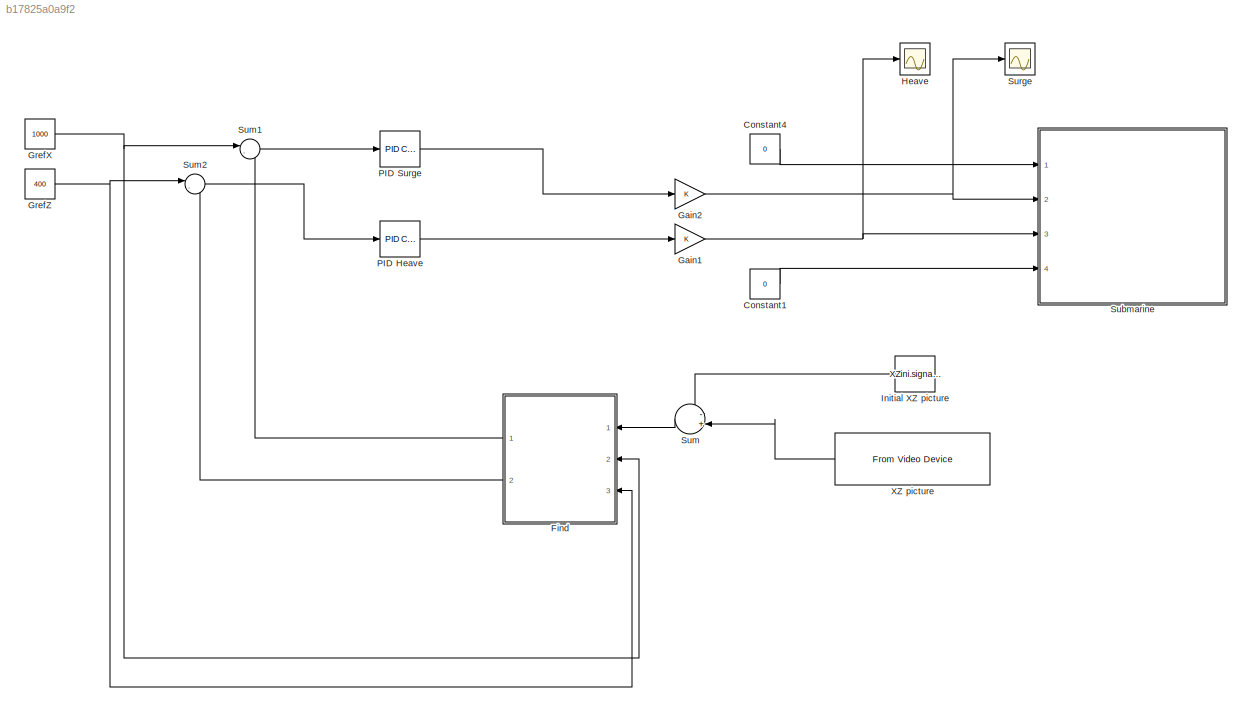
MODEL slx_b17825a0a9f2
KIND model
CONFIG AbsTol = auto
CONFIG EnableMultiTasking = off
CONFIG FixedStep = 0.01
CONFIG MaxStep = auto
CONFIG MinStep = auto
CONFIG RelTol = 1e-3
CONFIG SampleTimeConstraint = Unconstrained
CONFIG Solver = FixedStepAuto
CONFIG SolverName = FixedStepAuto
CONFIG StartTime = 0.0
CONFIG StopTime = Inf
BLOCK [Constant] Constant1
  Value = 0
BLOCK [Constant] Constant4
  Value = 0
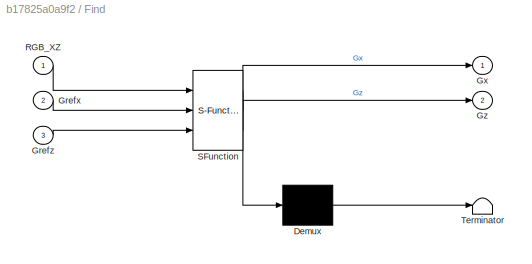
BLOCK [SubSystem] Find
  ErrorFcn = Stateflow.Translate.translate
  PermitHierarchicalResolution = ExplicitOnly
  Ports = [3, 2]
  RequestExecContextInheritance = off
  SFBlockType = MATLAB Function
  TreatAsAtomicUnit = on
BLOCK [Demux] Find/ Demux 
  Outputs = 1
  Ports = [1, 1]
BLOCK [S-Function] Find/ SFunction 
  EnableBusSupport = on
  FunctionName = sf_sfun
  PortCounts = [3 3]
  Ports = [3, 3]
  SFcnIsStateOwnerBlock = off
  SFunctionDeploymentMode = off
  Tag = Stateflow S-Function FullModel_v3_noYaw 2
BLOCK [Terminator] Find/ Terminator 
BLOCK [Inport] Find/Grefx
  IconDisplay = Port number
  Port = 2
BLOCK [Inport] Find/Grefz
  IconDisplay = Port number
  Port = 3
BLOCK [Outport] Find/Gx
  IconDisplay = Port number
BLOCK [Outport] Find/Gz
  IconDisplay = Port number
  Port = 2
BLOCK [Inport] Find/RGB_XZ
  IconDisplay = Port number
BLOCK [Gain] Gain1
  OutDataTypeStr = Inherit: Inherit via internal rule
  ParamDataTypeStr = Inherit: Inherit via internal rule
  SaturateOnIntegerOverflow = off
BLOCK [Gain] Gain2
  OutDataTypeStr = Inherit: Inherit via internal rule
  ParamDataTypeStr = Inherit: Inherit via internal rule
  SaturateOnIntegerOverflow = off
BLOCK [Constant] GrefX
  Value = 1000
BLOCK [Constant] GrefZ 
  Value = 400
BLOCK [Scope] Heave
  Floating = off
  NumInputPorts = 1
  Ports = [1]
  ScopeSpecificationString = Simulink.scopes.TimeScopeBlockCfg('CurrentConfiguration', extmgr.ConfigurationSet(extmgr.Configuration('Core','General UI',true),extmgr.Configuration('Core','Source UI',true),extmgr.Configuration('Sources','WiredSimulink',true),extmgr.Configuration('Visuals','Time Domain',true,'SerializedDisplays',{struct('MinYLimReal','-1250.00000','MaxYLimReal','1250.00000','YLabelReal','','MinYLimMag','  0.0000...<+1376ch>
BLOCK [Constant] Initial XZ picture
  Value = XZini.signals.values
BLOCK [Reference] PID Heave  REF=simulink/Continuous/PID Controller
  Ports = [1, 1]
  SourceBlock = simulink/Continuous/PID Controller
  SourceProductBaseCode = SL
  SourceProductName = Simulink
  SourceType = PID 1dof
BLOCK [Reference] PID Surge  REF=simulink/Continuous/PID Controller
  Ports = [1, 1]
  SourceBlock = simulink/Continuous/PID Controller
  SourceProductBaseCode = SL
  SourceProductName = Simulink
  SourceType = PID 1dof
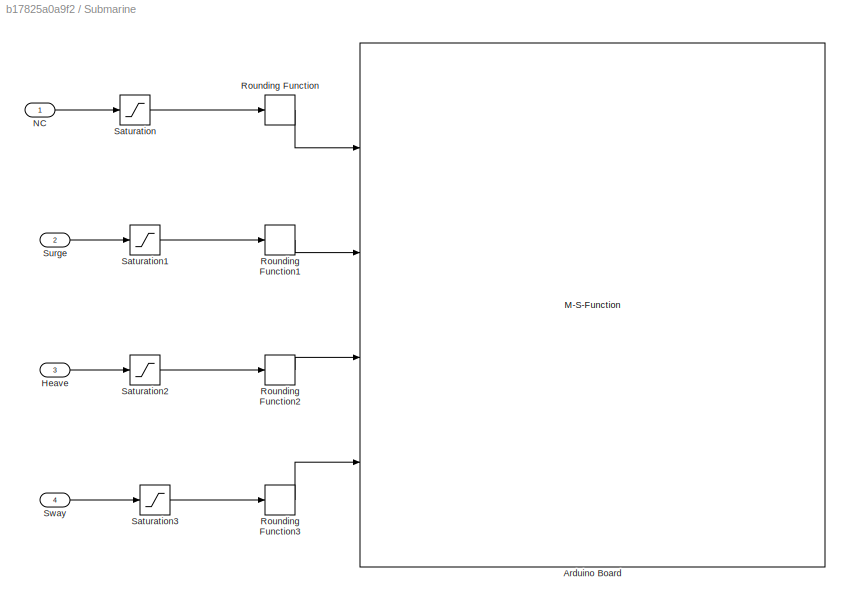
BLOCK [SubSystem] Submarine
  Ports = [4]
  RequestExecContextInheritance = off
BLOCK [M-S-Function] Submarine/Arduino Board
  FunctionName = Arduino_Board_Serial_Calibration
  Ports = [4]
BLOCK [Inport] Submarine/Heave
  IconDisplay = Port number
  Port = 3
BLOCK [Inport] Submarine/NC
  IconDisplay = Port number
BLOCK [Rounding] Submarine/Rounding Function
  Operator = round
BLOCK [Rounding] Submarine/Rounding Function1
  Operator = round
BLOCK [Rounding] Submarine/Rounding Function2
  Operator = round
BLOCK [Rounding] Submarine/Rounding Function3
  Operator = round
BLOCK [Saturate] Submarine/Saturation
  InputPortMap = u0
  LowerLimit = -1000
  Ports = [1, 1]
  UpperLimit = 1000
BLOCK [Saturate] Submarine/Saturation1
  InputPortMap = u0
  LowerLimit = -1000
  Ports = [1, 1]
  UpperLimit = 1000
BLOCK [Saturate] Submarine/Saturation2
  InputPortMap = u0
  LowerLimit = -1000
  Ports = [1, 1]
  UpperLimit = 1000
BLOCK [Saturate] Submarine/Saturation3
  InputPortMap = u0
  LowerLimit = -1000
  Ports = [1, 1]
  UpperLimit = 1000
BLOCK [Inport] Submarine/Surge
  IconDisplay = Port number
  Port = 2
BLOCK [Inport] Submarine/Sway
  IconDisplay = Port number
  Port = 4
BLOCK [Sum] Sum
  IconShape = round
  InputSameDT = off
  Inputs = -+|
  OutDataTypeStr = Inherit: Inherit via internal rule
  Ports = [2, 1]
  SaturateOnIntegerOverflow = off
BLOCK [Sum] Sum1
  IconShape = round
  InputSameDT = off
  Inputs = |-+
  OutDataTypeStr = Inherit: Inherit via internal rule
  Ports = [2, 1]
  SaturateOnIntegerOverflow = off
BLOCK [Sum] Sum2
  IconShape = round
  InputSameDT = off
  Inputs = |-+
  OutDataTypeStr = Inherit: Inherit via internal rule
  Ports = [2, 1]
  SaturateOnIntegerOverflow = off
BLOCK [Scope] Surge
  Floating = off
  NumInputPorts = 1
  Ports = [1]
  ScopeSpecificationString = Simulink.scopes.TimeScopeBlockCfg('CurrentConfiguration', extmgr.ConfigurationSet(extmgr.Configuration('Core','General UI',true),extmgr.Configuration('Core','Source UI',true),extmgr.Configuration('Sources','WiredSimulink',true,'DataLoggingVariableName','ScopeData1'),extmgr.Configuration('Visuals','Time Domain',true,'SerializedDisplays',{struct('MinYLimReal','-854.78268','MaxYLimReal','872.75363','...<+1407ch>
BLOCK [Reference] XZ picture  REF=imaqlib/From Video Device
  Ports = [0, 1]
  SourceBlock = imaqlib/From Video Device
  SourceProductBaseCode = IA
  SourceProductName = Image Acquisition Toolbox
  SourceType = From Video Device
  UserDataPersistent = on
LINE Constant1:1 -> Submarine:4
LINE Constant4:1 -> Submarine:1
LINE Find:1 -> Sum1:2
LINE Find:2 -> Sum2:2
NET Gain1:1 -> Heave:1, Submarine:3
NET Gain2:1 -> Submarine:2, Surge:1
NET GrefX:1 -> Find:2, Sum1:1
NET GrefZ :1 -> Find:3, Sum2:1
LINE Initial XZ picture:1 -> Sum:1
LINE PID Heave:1 -> Gain1:1
LINE PID Surge:1 -> Gain2:1
LINE Submarine/Heave:1 -> Submarine/Saturation2:1
LINE Submarine/NC:1 -> Submarine/Saturation:1
LINE Submarine/Rounding Function1:1 -> Submarine/Arduino Board:2
LINE Submarine/Rounding Function2:1 -> Submarine/Arduino Board:3
LINE Submarine/Rounding Function3:1 -> Submarine/Arduino Board:4
LINE Submarine/Rounding Function:1 -> Submarine/Arduino Board:1
LINE Submarine/Saturation1:1 -> Submarine/Rounding Function1:1
LINE Submarine/Saturation2:1 -> Submarine/Rounding Function2:1
LINE Submarine/Saturation3:1 -> Submarine/Rounding Function3:1
LINE Submarine/Saturation:1 -> Submarine/Rounding Function:1
LINE Submarine/Surge:1 -> Submarine/Saturation1:1
LINE Submarine/Sway:1 -> Submarine/Saturation3:1
LINE Sum1:1 -> PID Surge:1
LINE Sum2:1 -> PID Heave:1
LINE Sum:1 -> Find:1
LINE XZ picture:1 -> Sum:2
note: NET lines group one-source signal fan-out (src -> all destinations, sorted); 1:1 wires keep LINE
CHART Find states=1 transitions=1
  STATE_LABEL 'eML_blk_kernel()'
  STATE_LABEL "SCRIPT:\nfunction [Gx, Gz]  = fcn(RGB_XZ,Grefx,Grefz)\n    coder.extrinsic('image')\n    \n    % Parameters\n    Acrit     = 0.6; % Blue LED detection criteria\n    \n    % Keep red signal from RGB\n    A = RGB_XZ(:,:,3);\n\n    % Find Blue LED in picture\n    [Iz, Ix] = find(A>Acrit);\n    Iz       = 1080 - Iz;\n    \n    % Compute Submarine's Center of Gravity\n    Gx = mean(Ix) ;\n    Gz = mean(Iz);\n\n    \n    ...<+191ch>"
